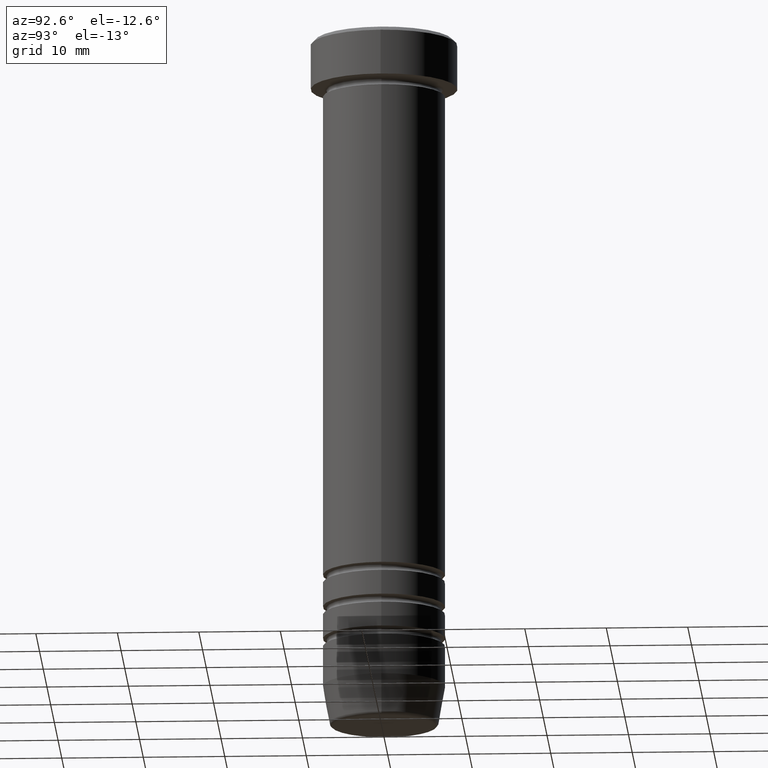
[diagram: clean part render]
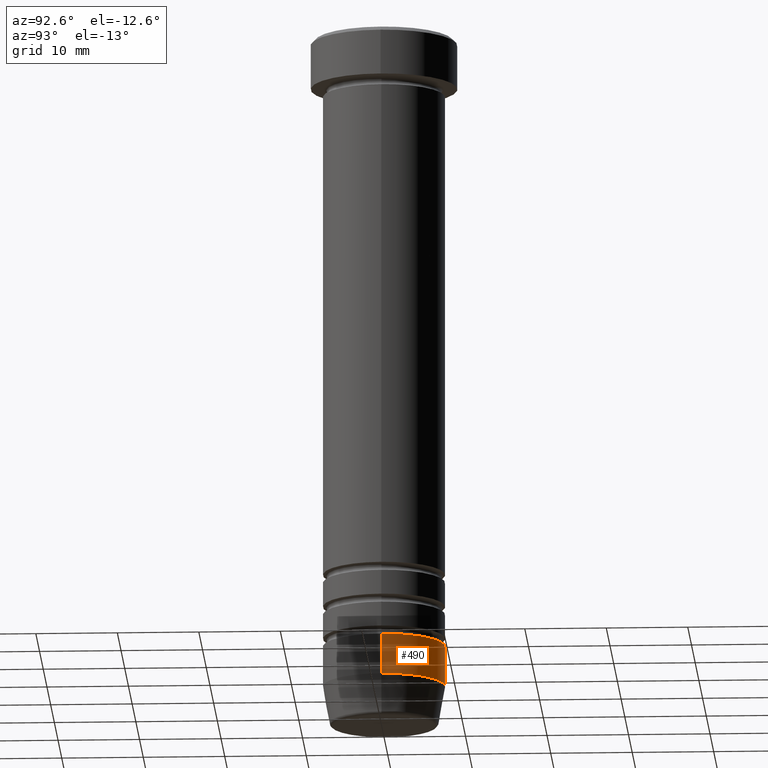
[diagram: same view with one face highlighted and labeled with its STEP entity id]
A machine part, auxiliary view. The second image highlights one B-rep face of the part: STEP entity #490.
In plain terms, the highlighted cylindrical surface (partial cylindrical patch) has radius 7.5 mm, axis along (-0, -0, 1).
Its self-contained STEP definition (entity closure, byte-faithful):
#30 = AXIS2_PLACEMENT_3D ( 'NONE', #528, #955, #340 ) ;
#46 = EDGE_CURVE ( 'NONE', #158, #725, #330, .T. ) ;
#87 = VECTOR ( 'NONE', #286, 1000.000000000000000 ) ;
#107 = LINE ( 'NONE', #466, #87 ) ;
#120 = CARTESIAN_POINT ( 'NONE',  ( 7.499999999999998224, 0.000000000000000000, -80.99999999999998579 ) ) ;
#143 = DIRECTION ( 'NONE',  ( -0.000000000000000000, -0.000000000000000000, 1.000000000000000000 ) ) ;
#158 = VERTEX_POINT ( 'NONE', #120 ) ;
#229 = VERTEX_POINT ( 'NONE', #1061 ) ;
#248 = EDGE_CURVE ( 'NONE', #725, #229, #107, .T. ) ;
#286 = DIRECTION ( 'NONE',  ( -0.000000000000000000, -0.000000000000000000, 1.000000000000000000 ) ) ;
#330 = CIRCLE ( 'NONE', #30, 7.499999999999998224 ) ;
#340 = DIRECTION ( 'NONE',  ( 1.000000000000000000, 0.000000000000000000, 0.000000000000000000 ) ) ;
#430 = EDGE_CURVE ( 'NONE', #158, #859, #741, .T. ) ;
#433 = DIRECTION ( 'NONE',  ( 1.000000000000000000, 0.000000000000000000, 0.000000000000000000 ) ) ;
#464 = AXIS2_PLACEMENT_3D ( 'NONE', #527, #770, #1038 ) ;
#466 = CARTESIAN_POINT ( 'NONE',  ( -7.499999999999998224, 9.184850993605145972E-16, 0.000000000000000000 ) ) ;
#490 = ADVANCED_FACE ( 'NONE', ( #779 ), #691, .T. ) ;
#527 = CARTESIAN_POINT ( 'NONE',  ( 0.000000000000000000, 0.000000000000000000, 0.000000000000000000 ) ) ;
#528 = CARTESIAN_POINT ( 'NONE',  ( 0.000000000000000000, 0.000000000000000000, -80.99999999999998579 ) ) ;
#582 = ORIENTED_EDGE ( 'NONE', *, *, #46, .T. ) ;
#592 = CIRCLE ( 'NONE', #661, 7.499999999999998224 ) ;
#619 = CARTESIAN_POINT ( 'NONE',  ( -7.499999999999998224, 9.184850993605145972E-16, -80.99999999999998579 ) ) ;
#650 = EDGE_LOOP ( 'NONE', ( #582, #1078, #844, #1117 ) ) ;
#661 = AXIS2_PLACEMENT_3D ( 'NONE', #1041, #778, #433 ) ;
#691 = CYLINDRICAL_SURFACE ( 'NONE', #464, 7.499999999999998224 ) ;
#725 = VERTEX_POINT ( 'NONE', #619 ) ;
#741 = LINE ( 'NONE', #1089, #1014 ) ;
#770 = DIRECTION ( 'NONE',  ( -0.000000000000000000, -0.000000000000000000, 1.000000000000000000 ) ) ;
#778 = DIRECTION ( 'NONE',  ( -0.000000000000000000, -0.000000000000000000, 1.000000000000000000 ) ) ;
#779 = FACE_OUTER_BOUND ( 'NONE', #650, .T. ) ;
#844 = ORIENTED_EDGE ( 'NONE', *, *, #973, .F. ) ;
#859 = VERTEX_POINT ( 'NONE', #1098 ) ;
#955 = DIRECTION ( 'NONE',  ( -0.000000000000000000, -0.000000000000000000, 1.000000000000000000 ) ) ;
#973 = EDGE_CURVE ( 'NONE', #859, #229, #592, .T. ) ;
#1014 = VECTOR ( 'NONE', #143, 1000.000000000000000 ) ;
#1038 = DIRECTION ( 'NONE',  ( 1.000000000000000000, 0.000000000000000000, 0.000000000000000000 ) ) ;
#1041 = CARTESIAN_POINT ( 'NONE',  ( 0.000000000000000000, 0.000000000000000000, -75.99999999999998579 ) ) ;
#1061 = CARTESIAN_POINT ( 'NONE',  ( -7.499999999999998224, 9.184850993605145972E-16, -75.99999999999998579 ) ) ;
#1078 = ORIENTED_EDGE ( 'NONE', *, *, #248, .T. ) ;
#1089 = CARTESIAN_POINT ( 'NONE',  ( 7.499999999999998224, 0.000000000000000000, 0.000000000000000000 ) ) ;
#1098 = CARTESIAN_POINT ( 'NONE',  ( 7.499999999999998224, 0.000000000000000000, -75.99999999999998579 ) ) ;
#1117 = ORIENTED_EDGE ( 'NONE', *, *, #430, .F. ) ;